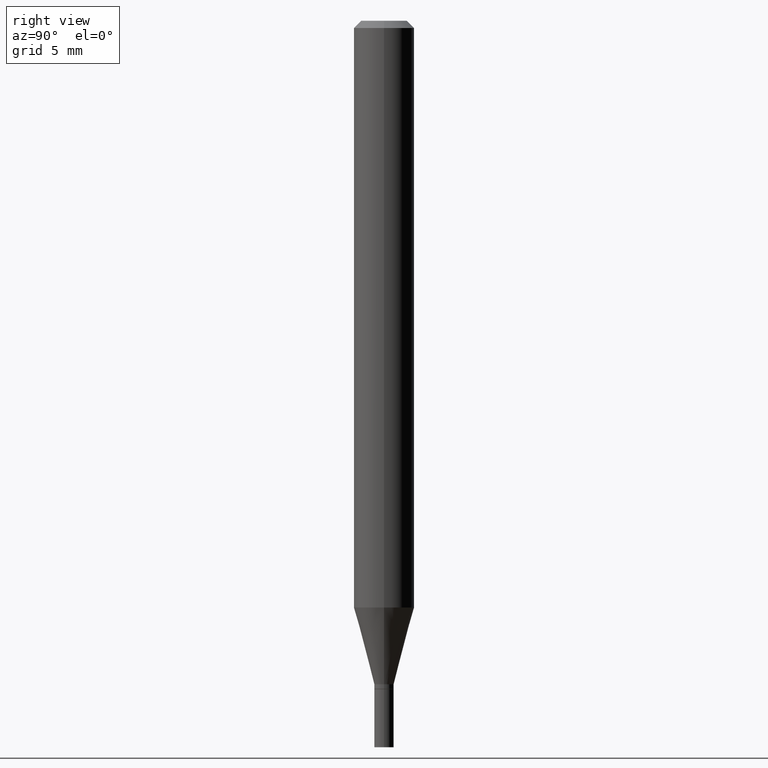
[diagram: clean part render]
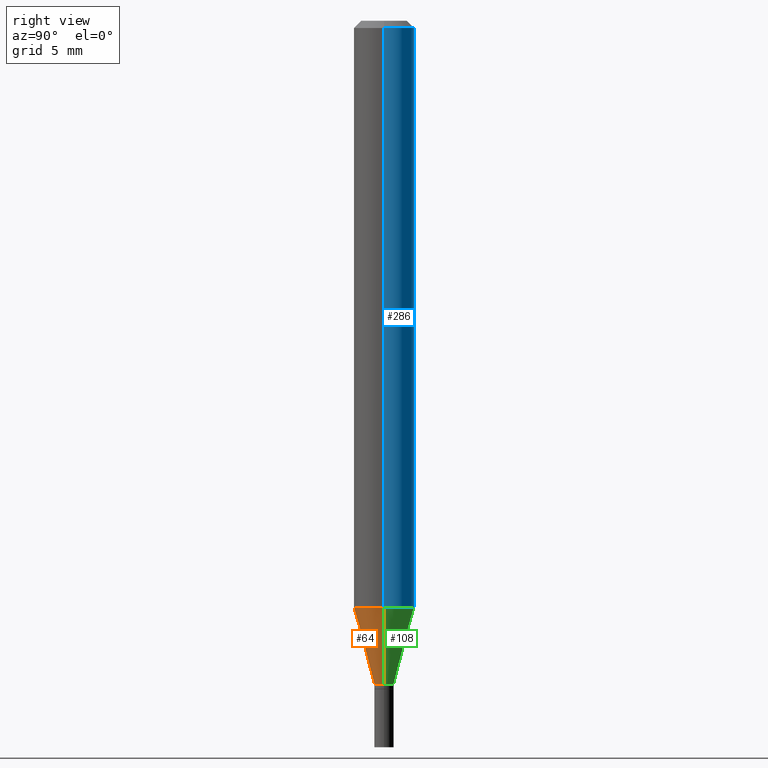
[diagram: same view with three faces highlighted in distinct colors, each labeled with its STEP entity id]
A machine part, right view with three faces highlighted in distinct colors.
Their STEP definitions:

[orange] entity #64 — the highlighted conical surface has half-angle 15 deg.
#1 = EDGE_CURVE ( 'NONE', #146, #419, #35, .T. ) ;
#10 = AXIS2_PLACEMENT_3D ( 'NONE', #361, #327, #138 ) ;
#25 = AXIS2_PLACEMENT_3D ( 'NONE', #37, #397, #103 ) ;
#35 = CIRCLE ( 'NONE', #25, 0.06250000000000000000 ) ;
#37 = CARTESIAN_POINT ( 'NONE',  ( 2.962411176570807976E-29, -4.229538039829856953E-15, -1.211387840678322503 ) ) ;
#53 = ORIENTED_EDGE ( 'NONE', *, *, #84, .T. ) ;
#64 = ADVANCED_FACE ( 'NONE', ( #329 ), #238, .T. ) ;
#78 = DIRECTION ( 'NONE',  ( 0.2588190451025206840, 1.565188264969626504E-15, 0.9659258262890682012 ) ) ;
#84 = EDGE_CURVE ( 'NONE', #440, #370, #173, .T. ) ;
#103 = DIRECTION ( 'NONE',  ( 1.000000000000000000, -6.982962677686270655E-15, 0.000000000000000000 ) ) ;
#113 = CARTESIAN_POINT ( 'NONE',  ( 0.01999999999999992062, -4.922988687768834913E-15, -1.370000000000000107 ) ) ;
#117 = LINE ( 'NONE', #376, #415 ) ;
#128 = CARTESIAN_POINT ( 'NONE',  ( -0.01999999999999992062, -4.213334858521442034E-15, -1.370000000000000107 ) ) ;
#129 = EDGE_CURVE ( 'NONE', #370, #419, #306, .T. ) ;
#138 = DIRECTION ( 'NONE',  ( 1.000000000000000000, -6.982962677686263555E-15, 0.000000000000000000 ) ) ;
#146 = VERTEX_POINT ( 'NONE', #189 ) ;
#173 = CIRCLE ( 'NONE', #404, 0.01999999999999992062 ) ;
#189 = CARTESIAN_POINT ( 'NONE',  ( -0.06250000000000000000, -3.785448829979794337E-15, -1.211387840678322503 ) ) ;
#192 = ORIENTED_EDGE ( 'NONE', *, *, #193, .F. ) ;
#193 = EDGE_CURVE ( 'NONE', #440, #146, #117, .T. ) ;
#218 = DIRECTION ( 'NONE',  ( -0.2588190451025206840, 5.211531920934545520E-15, 0.9659258262890682012 ) ) ;
#224 = DIRECTION ( 'NONE',  ( 1.000000000000000000, -6.982962677686263555E-15, 0.000000000000000000 ) ) ;
#238 = CONICAL_SURFACE ( 'NONE', #10, 0.01999999999999992062, 0.2617993877991494078 ) ;
#259 = CARTESIAN_POINT ( 'NONE',  ( 3.350292264473637048E-29, -4.783329434215109894E-15, -1.370000000000000107 ) ) ;
#266 = EDGE_LOOP ( 'NONE', ( #192, #53, #451, #449 ) ) ;
#306 = LINE ( 'NONE', #113, #347 ) ;
#327 = DIRECTION ( 'NONE',  ( -2.445468806185136597E-29, 3.491481338843145583E-15, 1.000000000000000000 ) ) ;
#329 = FACE_OUTER_BOUND ( 'NONE', #266, .T. ) ;
#339 = CARTESIAN_POINT ( 'NONE',  ( 0.01999999999999992062, -4.922988687768834913E-15, -1.370000000000000107 ) ) ;
#345 = DIRECTION ( 'NONE',  ( -2.445468806185136597E-29, 3.491481338843145583E-15, 1.000000000000000000 ) ) ;
#347 = VECTOR ( 'NONE', #78, 39.37007874015748854 ) ;
#361 = CARTESIAN_POINT ( 'NONE',  ( 3.350292264473637048E-29, -4.783329434215109894E-15, -1.370000000000000107 ) ) ;
#370 = VERTEX_POINT ( 'NONE', #339 ) ;
#376 = CARTESIAN_POINT ( 'NONE',  ( -0.01999999999999992062, -4.641220887063090519E-15, -1.370000000000000107 ) ) ;
#393 = CARTESIAN_POINT ( 'NONE',  ( 0.06250000000000000000, -4.665973207185248623E-15, -1.211387840678322503 ) ) ;
#397 = DIRECTION ( 'NONE',  ( -2.445468806185136597E-29, 3.491481338843145583E-15, 1.000000000000000000 ) ) ;
#404 = AXIS2_PLACEMENT_3D ( 'NONE', #259, #345, #224 ) ;
#415 = VECTOR ( 'NONE', #218, 39.37007874015748854 ) ;
#419 = VERTEX_POINT ( 'NONE', #393 ) ;
#440 = VERTEX_POINT ( 'NONE', #128 ) ;
#449 = ORIENTED_EDGE ( 'NONE', *, *, #1, .F. ) ;
#451 = ORIENTED_EDGE ( 'NONE', *, *, #129, .T. ) ;

[blue] entity #286 — the highlighted cylindrical surface (edge-blend (fillet) strip) has radius 1.5875 mm, axis along (-0, 0, 1).
#11 = AXIS2_PLACEMENT_3D ( 'NONE', #426, #386, #164 ) ;
#29 = CIRCLE ( 'NONE', #198, 0.06250000000000000000 ) ;
#46 = DIRECTION ( 'NONE',  ( 1.000000000000000000, -6.982962677686266711E-15, 0.000000000000000000 ) ) ;
#52 = CARTESIAN_POINT ( 'NONE',  ( -0.06250000000000000000, -1.696865920106189400E-15, -0.01499999999999999944 ) ) ;
#63 = AXIS2_PLACEMENT_3D ( 'NONE', #243, #65, #158 ) ;
#65 = DIRECTION ( 'NONE',  ( -2.445468806185136597E-29, 3.491481338843145583E-15, 1.000000000000000000 ) ) ;
#67 = EDGE_CURVE ( 'NONE', #146, #196, #141, .T. ) ;
#98 = CYLINDRICAL_SURFACE ( 'NONE', #63, 0.06250000000000000000 ) ;
#111 = VECTOR ( 'NONE', #183, 39.37007874015748143 ) ;
#116 = ORIENTED_EDGE ( 'NONE', *, *, #67, .T. ) ;
#141 = LINE ( 'NONE', #297, #111 ) ;
#146 = VERTEX_POINT ( 'NONE', #189 ) ;
#158 = DIRECTION ( 'NONE',  ( 1.000000000000000000, -6.982962677686266711E-15, 4.876176775795935793E-29 ) ) ;
#164 = DIRECTION ( 'NONE',  ( 1.000000000000000000, -6.982962677686270655E-15, 0.000000000000000000 ) ) ;
#183 = DIRECTION ( 'NONE',  ( -2.445468806185136877E-29, 3.491481338843145188E-15, 1.000000000000000000 ) ) ;
#184 = EDGE_LOOP ( 'NONE', ( #212, #116, #309, #336 ) ) ;
#189 = CARTESIAN_POINT ( 'NONE',  ( -0.06250000000000000000, -3.785448829979794337E-15, -1.211387840678322503 ) ) ;
#196 = VERTEX_POINT ( 'NONE', #52 ) ;
#198 = AXIS2_PLACEMENT_3D ( 'NONE', #371, #263, #46 ) ;
#209 = CIRCLE ( 'NONE', #11, 0.06250000000000000000 ) ;
#212 = ORIENTED_EDGE ( 'NONE', *, *, #253, .T. ) ;
#242 = LINE ( 'NONE', #317, #322 ) ;
#243 = CARTESIAN_POINT ( 'NONE',  ( 0.000000000000000000, 0.000000000000000000, 0.000000000000000000 ) ) ;
#252 = VERTEX_POINT ( 'NONE', #280 ) ;
#253 = EDGE_CURVE ( 'NONE', #419, #146, #209, .T. ) ;
#263 = DIRECTION ( 'NONE',  ( -2.445468806185136597E-29, 3.491481338843145583E-15, 1.000000000000000000 ) ) ;
#280 = CARTESIAN_POINT ( 'NONE',  ( 0.06250000000000000000, -4.888073874380388472E-16, -0.01499999999999999944 ) ) ;
#285 = FACE_OUTER_BOUND ( 'NONE', #184, .T. ) ;
#286 = ADVANCED_FACE ( 'NONE', ( #285 ), #98, .T. ) ;
#297 = CARTESIAN_POINT ( 'NONE',  ( -0.06250000000000000000, 4.440892098500626162E-16, -3.074334431409316114E-30 ) ) ;
#309 = ORIENTED_EDGE ( 'NONE', *, *, #363, .F. ) ;
#317 = CARTESIAN_POINT ( 'NONE',  ( 0.06250000000000000000, -4.364351673553916694E-16, 3.047610484872459871E-30 ) ) ;
#322 = VECTOR ( 'NONE', #458, 39.37007874015748143 ) ;
#336 = ORIENTED_EDGE ( 'NONE', *, *, #446, .F. ) ;
#363 = EDGE_CURVE ( 'NONE', #252, #196, #29, .T. ) ;
#371 = CARTESIAN_POINT ( 'NONE',  ( 3.668203209277705088E-31, -5.237222008264718399E-17, -0.01499999999999999944 ) ) ;
#386 = DIRECTION ( 'NONE',  ( -2.445468806185136597E-29, 3.491481338843145583E-15, 1.000000000000000000 ) ) ;
#393 = CARTESIAN_POINT ( 'NONE',  ( 0.06250000000000000000, -4.665973207185248623E-15, -1.211387840678322503 ) ) ;
#419 = VERTEX_POINT ( 'NONE', #393 ) ;
#426 = CARTESIAN_POINT ( 'NONE',  ( 2.962411176570807976E-29, -4.229538039829856953E-15, -1.211387840678322503 ) ) ;
#446 = EDGE_CURVE ( 'NONE', #419, #252, #242, .T. ) ;
#458 = DIRECTION ( 'NONE',  ( -2.445468806185136877E-29, 3.491481338843145188E-15, 1.000000000000000000 ) ) ;

[green] entity #108 — the highlighted conical surface has half-angle 15 deg.
#11 = AXIS2_PLACEMENT_3D ( 'NONE', #426, #386, #164 ) ;
#78 = DIRECTION ( 'NONE',  ( 0.2588190451025206840, 1.565188264969626504E-15, 0.9659258262890682012 ) ) ;
#108 = ADVANCED_FACE ( 'NONE', ( #115 ), #135, .T. ) ;
#113 = CARTESIAN_POINT ( 'NONE',  ( 0.01999999999999992062, -4.922988687768834913E-15, -1.370000000000000107 ) ) ;
#114 = DIRECTION ( 'NONE',  ( -2.445468806185136597E-29, 3.491481338843145583E-15, 1.000000000000000000 ) ) ;
#115 = FACE_OUTER_BOUND ( 'NONE', #302, .T. ) ;
#117 = LINE ( 'NONE', #376, #415 ) ;
#127 = CIRCLE ( 'NONE', #373, 0.01999999999999992062 ) ;
#128 = CARTESIAN_POINT ( 'NONE',  ( -0.01999999999999992062, -4.213334858521442034E-15, -1.370000000000000107 ) ) ;
#129 = EDGE_CURVE ( 'NONE', #370, #419, #306, .T. ) ;
#135 = CONICAL_SURFACE ( 'NONE', #465, 0.01999999999999992062, 0.2617993877991494078 ) ;
#146 = VERTEX_POINT ( 'NONE', #189 ) ;
#164 = DIRECTION ( 'NONE',  ( 1.000000000000000000, -6.982962677686270655E-15, 0.000000000000000000 ) ) ;
#182 = ORIENTED_EDGE ( 'NONE', *, *, #253, .F. ) ;
#189 = CARTESIAN_POINT ( 'NONE',  ( -0.06250000000000000000, -3.785448829979794337E-15, -1.211387840678322503 ) ) ;
#193 = EDGE_CURVE ( 'NONE', #440, #146, #117, .T. ) ;
#209 = CIRCLE ( 'NONE', #11, 0.06250000000000000000 ) ;
#218 = DIRECTION ( 'NONE',  ( -0.2588190451025206840, 5.211531920934545520E-15, 0.9659258262890682012 ) ) ;
#253 = EDGE_CURVE ( 'NONE', #419, #146, #209, .T. ) ;
#260 = DIRECTION ( 'NONE',  ( 1.000000000000000000, -6.982962677686263555E-15, 0.000000000000000000 ) ) ;
#261 = CARTESIAN_POINT ( 'NONE',  ( 3.350292264473637048E-29, -4.783329434215109894E-15, -1.370000000000000107 ) ) ;
#299 = DIRECTION ( 'NONE',  ( -2.445468806185136597E-29, 3.491481338843145583E-15, 1.000000000000000000 ) ) ;
#302 = EDGE_LOOP ( 'NONE', ( #413, #445, #182, #410 ) ) ;
#306 = LINE ( 'NONE', #113, #347 ) ;
#339 = CARTESIAN_POINT ( 'NONE',  ( 0.01999999999999992062, -4.922988687768834913E-15, -1.370000000000000107 ) ) ;
#342 = EDGE_CURVE ( 'NONE', #370, #440, #127, .T. ) ;
#347 = VECTOR ( 'NONE', #78, 39.37007874015748854 ) ;
#370 = VERTEX_POINT ( 'NONE', #339 ) ;
#372 = DIRECTION ( 'NONE',  ( 1.000000000000000000, -6.982962677686263555E-15, 0.000000000000000000 ) ) ;
#373 = AXIS2_PLACEMENT_3D ( 'NONE', #447, #114, #260 ) ;
#376 = CARTESIAN_POINT ( 'NONE',  ( -0.01999999999999992062, -4.641220887063090519E-15, -1.370000000000000107 ) ) ;
#386 = DIRECTION ( 'NONE',  ( -2.445468806185136597E-29, 3.491481338843145583E-15, 1.000000000000000000 ) ) ;
#393 = CARTESIAN_POINT ( 'NONE',  ( 0.06250000000000000000, -4.665973207185248623E-15, -1.211387840678322503 ) ) ;
#410 = ORIENTED_EDGE ( 'NONE', *, *, #129, .F. ) ;
#413 = ORIENTED_EDGE ( 'NONE', *, *, #342, .T. ) ;
#415 = VECTOR ( 'NONE', #218, 39.37007874015748854 ) ;
#419 = VERTEX_POINT ( 'NONE', #393 ) ;
#426 = CARTESIAN_POINT ( 'NONE',  ( 2.962411176570807976E-29, -4.229538039829856953E-15, -1.211387840678322503 ) ) ;
#440 = VERTEX_POINT ( 'NONE', #128 ) ;
#445 = ORIENTED_EDGE ( 'NONE', *, *, #193, .T. ) ;
#447 = CARTESIAN_POINT ( 'NONE',  ( 3.350292264473637048E-29, -4.783329434215109894E-15, -1.370000000000000107 ) ) ;
#465 = AXIS2_PLACEMENT_3D ( 'NONE', #261, #299, #372 ) ;